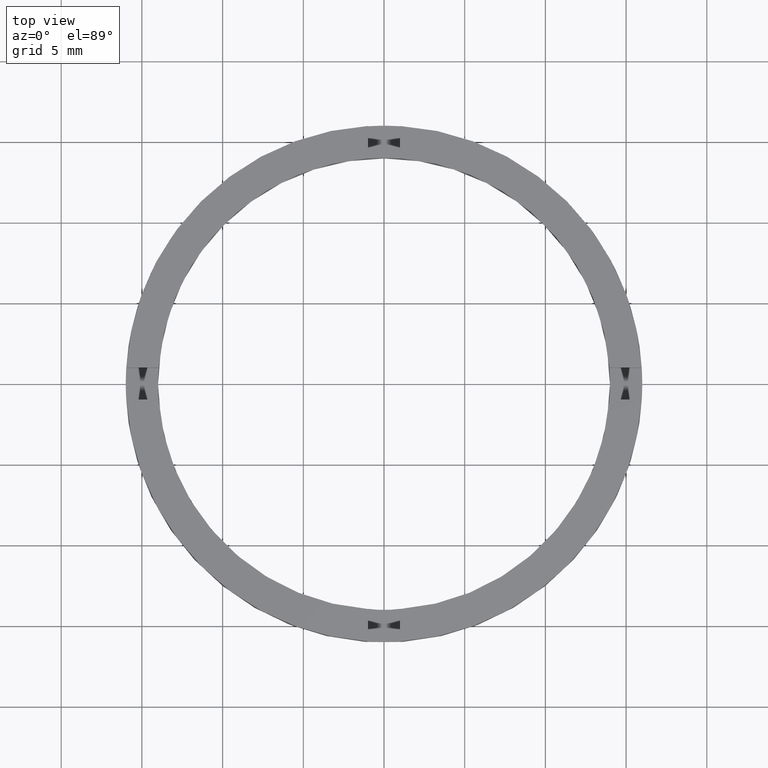
[diagram: clean part render]
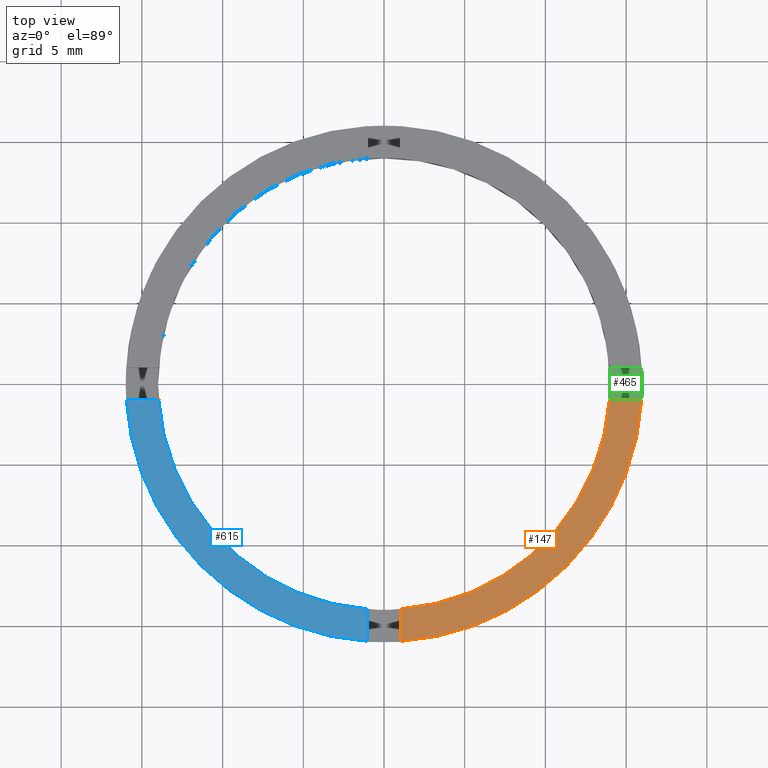
[diagram: same view with three faces highlighted in distinct colors, each labeled with its STEP entity id]
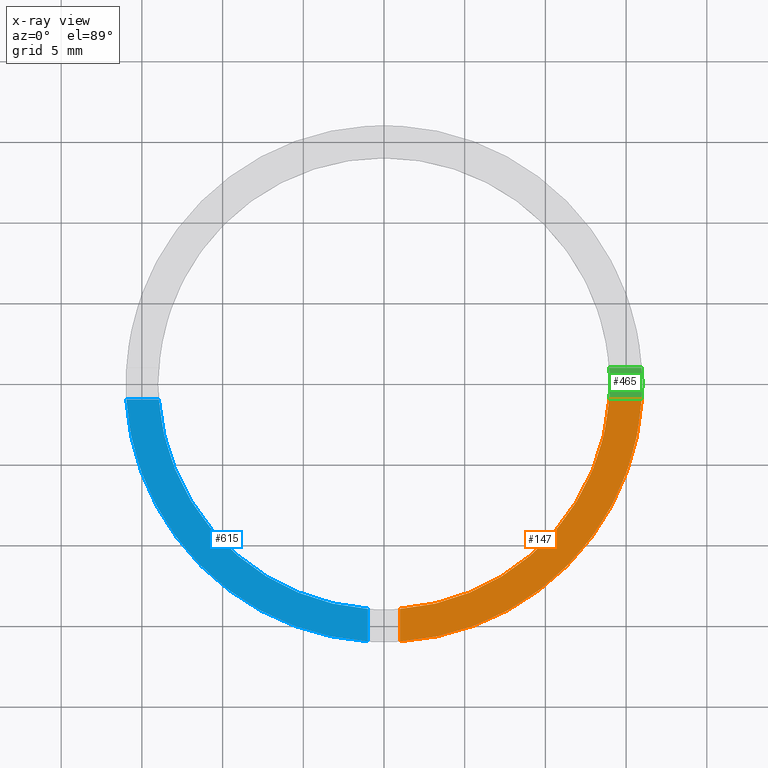
[diagram: x-ray of the same camera — body ghosted, the three highlighted faces saturated]
A machine part, top view with three faces highlighted in distinct colors.
The next image is the same camera in x-ray (body ghosted, the three faces saturated) — at least one of them is partly hidden behind the body in this view.
Their STEP definitions:

[orange] entity #147 — the highlighted planar face has unit normal (0, 0, 1).
#16 = CARTESIAN_POINT ( 'NONE',  ( 0.9999999999998373523, -15.96871942267132383, 2.500000000000000000 ) ) ;
#24 = DIRECTION ( 'NONE',  ( 1.000000000000000000, 0.000000000000000000, 0.000000000000000000 ) ) ;
#34 = AXIS2_PLACEMENT_3D ( 'NONE', #569, #611, #60 ) ;
#60 = DIRECTION ( 'NONE',  ( 1.000000000000000000, 0.000000000000000000, -0.000000000000000000 ) ) ;
#66 = EDGE_CURVE ( 'NONE', #484, #672, #451, .T. ) ;
#70 = DIRECTION ( 'NONE',  ( 0.000000000000000000, 0.000000000000000000, 1.000000000000000000 ) ) ;
#71 = DIRECTION ( 'NONE',  ( 0.000000000000000000, 0.000000000000000000, 1.000000000000000000 ) ) ;
#105 = VERTEX_POINT ( 'NONE', #732 ) ;
#147 = ADVANCED_FACE ( 'NONE', ( #631 ), #699, .T. ) ;
#161 = DIRECTION ( 'NONE',  ( 1.000000000000000000, 0.000000000000000000, 0.000000000000000000 ) ) ;
#174 = CIRCLE ( 'NONE', #321, 14.00000000000000000 ) ;
#177 = ORIENTED_EDGE ( 'NONE', *, *, #540, .F. ) ;
#272 = CARTESIAN_POINT ( 'NONE',  ( 0.000000000000000000, 0.000000000000000000, 2.500000000000000000 ) ) ;
#315 = CARTESIAN_POINT ( 'NONE',  ( 15.96871942267130429, -1.000000000000159206, 2.500000000000000000 ) ) ;
#316 = EDGE_CURVE ( 'NONE', #105, #419, #174, .T. ) ;
#321 = AXIS2_PLACEMENT_3D ( 'NONE', #620, #71, #24 ) ;
#325 = AXIS2_PLACEMENT_3D ( 'NONE', #272, #70, #161 ) ;
#401 = DIRECTION ( 'NONE',  ( 1.000000000000000000, 4.336808689942018352E-17, 0.000000000000000000 ) ) ;
#419 = VERTEX_POINT ( 'NONE', #574 ) ;
#451 = CIRCLE ( 'NONE', #325, 16.00000000000000000 ) ;
#457 = LINE ( 'NONE', #744, #730 ) ;
#475 = VECTOR ( 'NONE', #401, 1000.000000000000000 ) ;
#484 = VERTEX_POINT ( 'NONE', #16 ) ;
#504 = LINE ( 'NONE', #515, #475 ) ;
#515 = CARTESIAN_POINT ( 'NONE',  ( 5.999999999999994671, -1.000000000000159650, 2.500000000000000000 ) ) ;
#540 = EDGE_CURVE ( 'NONE', #484, #105, #457, .T. ) ;
#569 = CARTESIAN_POINT ( 'NONE',  ( 0.000000000000000000, 0.000000000000000000, 2.500000000000000000 ) ) ;
#574 = CARTESIAN_POINT ( 'NONE',  ( 13.96424004376893002, -1.000000000000159206, 2.500000000000000000 ) ) ;
#588 = EDGE_CURVE ( 'NONE', #419, #672, #504, .T. ) ;
#611 = DIRECTION ( 'NONE',  ( 0.000000000000000000, 0.000000000000000000, 1.000000000000000000 ) ) ;
#620 = CARTESIAN_POINT ( 'NONE',  ( 0.000000000000000000, 0.000000000000000000, 2.500000000000000000 ) ) ;
#631 = FACE_OUTER_BOUND ( 'NONE', #632, .T. ) ;
#632 = EDGE_LOOP ( 'NONE', ( #704, #655, #177, #659 ) ) ;
#655 = ORIENTED_EDGE ( 'NONE', *, *, #316, .F. ) ;
#659 = ORIENTED_EDGE ( 'NONE', *, *, #66, .T. ) ;
#662 = DIRECTION ( 'NONE',  ( -1.301042606982605321E-16, 1.000000000000000000, -0.000000000000000000 ) ) ;
#672 = VERTEX_POINT ( 'NONE', #315 ) ;
#699 = PLANE ( 'NONE',  #34 ) ;
#704 = ORIENTED_EDGE ( 'NONE', *, *, #588, .F. ) ;
#730 = VECTOR ( 'NONE', #662, 1000.000000000000000 ) ;
#732 = CARTESIAN_POINT ( 'NONE',  ( 0.9999999999998369082, -13.96424004376895311, 2.500000000000000000 ) ) ;
#744 = CARTESIAN_POINT ( 'NONE',  ( 0.9999999999998361311, -6.000000000000180300, 2.500000000000000000 ) ) ;

[blue] entity #615 — the highlighted planar face has unit normal (0, 0, 1).
#48 = DIRECTION ( 'NONE',  ( 0.000000000000000000, 0.000000000000000000, 1.000000000000000000 ) ) ;
#81 = CARTESIAN_POINT ( 'NONE',  ( -15.96871942267130962, -1.000000000000023315, 2.500000000000000000 ) ) ;
#83 = VERTEX_POINT ( 'NONE', #584 ) ;
#92 = VECTOR ( 'NONE', #260, 1000.000000000000000 ) ;
#100 = LINE ( 'NONE', #603, #92 ) ;
#104 = EDGE_LOOP ( 'NONE', ( #208, #163, #414, #661 ) ) ;
#119 = VERTEX_POINT ( 'NONE', #509 ) ;
#139 = VECTOR ( 'NONE', #772, 1000.000000000000000 ) ;
#163 = ORIENTED_EDGE ( 'NONE', *, *, #302, .F. ) ;
#208 = ORIENTED_EDGE ( 'NONE', *, *, #752, .F. ) ;
#256 = DIRECTION ( 'NONE',  ( 0.000000000000000000, 0.000000000000000000, 1.000000000000000000 ) ) ;
#257 = AXIS2_PLACEMENT_3D ( 'NONE', #334, #256, #436 ) ;
#260 = DIRECTION ( 'NONE',  ( 1.301042606982605321E-16, -1.000000000000000000, 0.000000000000000000 ) ) ;
#262 = EDGE_CURVE ( 'NONE', #681, #83, #430, .T. ) ;
#263 = CARTESIAN_POINT ( 'NONE',  ( 0.000000000000000000, 0.000000000000000000, 2.500000000000000000 ) ) ;
#300 = DIRECTION ( 'NONE',  ( 1.000000000000000000, 0.000000000000000000, 0.000000000000000000 ) ) ;
#302 = EDGE_CURVE ( 'NONE', #83, #356, #418, .T. ) ;
#310 = DIRECTION ( 'NONE',  ( 1.000000000000000000, 0.000000000000000000, -0.000000000000000000 ) ) ;
#334 = CARTESIAN_POINT ( 'NONE',  ( 0.000000000000000000, 0.000000000000000000, 2.500000000000000000 ) ) ;
#342 = DIRECTION ( 'NONE',  ( 0.000000000000000000, 0.000000000000000000, 1.000000000000000000 ) ) ;
#349 = CIRCLE ( 'NONE', #257, 16.00000000000000000 ) ;
#356 = VERTEX_POINT ( 'NONE', #780 ) ;
#359 = CARTESIAN_POINT ( 'NONE',  ( 0.000000000000000000, 0.000000000000000000, 2.500000000000000000 ) ) ;
#387 = AXIS2_PLACEMENT_3D ( 'NONE', #263, #342, #300 ) ;
#414 = ORIENTED_EDGE ( 'NONE', *, *, #262, .F. ) ;
#418 = CIRCLE ( 'NONE', #387, 14.00000000000000000 ) ;
#430 = LINE ( 'NONE', #605, #139 ) ;
#436 = DIRECTION ( 'NONE',  ( 1.000000000000000000, 0.000000000000000000, 0.000000000000000000 ) ) ;
#509 = CARTESIAN_POINT ( 'NONE',  ( -1.000000000000162759, -15.96871942267130073, 2.500000000000000000 ) ) ;
#533 = FACE_OUTER_BOUND ( 'NONE', #104, .T. ) ;
#584 = CARTESIAN_POINT ( 'NONE',  ( -13.96424004376894068, -1.000000000000022871, 2.500000000000000000 ) ) ;
#597 = PLANE ( 'NONE',  #715 ) ;
#603 = CARTESIAN_POINT ( 'NONE',  ( -1.000000000000163869, -6.000000000000180300, 2.500000000000000000 ) ) ;
#605 = CARTESIAN_POINT ( 'NONE',  ( -6.000000000000185629, -1.000000000000021538, 2.500000000000000000 ) ) ;
#615 = ADVANCED_FACE ( 'NONE', ( #533 ), #597, .T. ) ;
#661 = ORIENTED_EDGE ( 'NONE', *, *, #771, .T. ) ;
#681 = VERTEX_POINT ( 'NONE', #81 ) ;
#715 = AXIS2_PLACEMENT_3D ( 'NONE', #359, #48, #310 ) ;
#752 = EDGE_CURVE ( 'NONE', #356, #119, #100, .T. ) ;
#771 = EDGE_CURVE ( 'NONE', #681, #119, #349, .T. ) ;
#772 = DIRECTION ( 'NONE',  ( 1.000000000000000000, 1.734723475976807341E-16, -0.000000000000000000 ) ) ;
#780 = CARTESIAN_POINT ( 'NONE',  ( -1.000000000000162981, -13.96424004376893002, 2.500000000000000000 ) ) ;

[green] entity #465 — the highlighted planar face has unit normal (0, 0, 1).
#8 = CARTESIAN_POINT ( 'NONE',  ( 16.00000000000000000, 1.959434878635765131E-15, 1.500000000000000000 ) ) ;
#18 = CARTESIAN_POINT ( 'NONE',  ( 0.000000000000000000, 0.000000000000000000, 1.500000000000000000 ) ) ;
#23 = EDGE_CURVE ( 'NONE', #216, #408, #616, .T. ) ;
#44 = EDGE_CURVE ( 'NONE', #650, #453, #182, .T. ) ;
#46 = AXIS2_PLACEMENT_3D ( 'NONE', #18, #561, #55 ) ;
#47 = CARTESIAN_POINT ( 'NONE',  ( 5.999999999999994671, -1.000000000000159650, 1.500000000000000000 ) ) ;
#55 = DIRECTION ( 'NONE',  ( 1.000000000000000000, 0.000000000000000000, 0.000000000000000000 ) ) ;
#79 = CARTESIAN_POINT ( 'NONE',  ( 15.96871942267132027, 0.9999999999998409050, 1.500000000000000000 ) ) ;
#80 = VECTOR ( 'NONE', #190, 1000.000000000000000 ) ;
#101 = ORIENTED_EDGE ( 'NONE', *, *, #44, .T. ) ;
#102 = DIRECTION ( 'NONE',  ( 0.000000000000000000, 0.000000000000000000, 1.000000000000000000 ) ) ;
#131 = ORIENTED_EDGE ( 'NONE', *, *, #278, .F. ) ;
#132 = ORIENTED_EDGE ( 'NONE', *, *, #239, .T. ) ;
#133 = ORIENTED_EDGE ( 'NONE', *, *, #23, .T. ) ;
#143 = CIRCLE ( 'NONE', #242, 16.00000000000000000 ) ;
#158 = CIRCLE ( 'NONE', #234, 14.00000000000000000 ) ;
#182 = LINE ( 'NONE', #628, #443 ) ;
#183 = PLANE ( 'NONE',  #448 ) ;
#187 = AXIS2_PLACEMENT_3D ( 'NONE', #378, #236, #271 ) ;
#190 = DIRECTION ( 'NONE',  ( 1.000000000000000000, 4.336808689942018352E-17, 0.000000000000000000 ) ) ;
#213 = ORIENTED_EDGE ( 'NONE', *, *, #446, .F. ) ;
#216 = VERTEX_POINT ( 'NONE', #602 ) ;
#217 = FACE_OUTER_BOUND ( 'NONE', #671, .T. ) ;
#234 = AXIS2_PLACEMENT_3D ( 'NONE', #587, #543, #274 ) ;
#236 = DIRECTION ( 'NONE',  ( 0.000000000000000000, 0.000000000000000000, 1.000000000000000000 ) ) ;
#239 = EDGE_CURVE ( 'NONE', #408, #494, #143, .T. ) ;
#242 = AXIS2_PLACEMENT_3D ( 'NONE', #279, #102, #525 ) ;
#271 = DIRECTION ( 'NONE',  ( 1.000000000000000000, 0.000000000000000000, 0.000000000000000000 ) ) ;
#274 = DIRECTION ( 'NONE',  ( 1.000000000000000000, 0.000000000000000000, 0.000000000000000000 ) ) ;
#278 = EDGE_CURVE ( 'NONE', #394, #453, #158, .T. ) ;
#279 = CARTESIAN_POINT ( 'NONE',  ( 0.000000000000000000, 0.000000000000000000, 1.500000000000000000 ) ) ;
#378 = CARTESIAN_POINT ( 'NONE',  ( 0.000000000000000000, 0.000000000000000000, 1.500000000000000000 ) ) ;
#394 = VERTEX_POINT ( 'NONE', #703 ) ;
#408 = VERTEX_POINT ( 'NONE', #455 ) ;
#423 = DIRECTION ( 'NONE',  ( 1.000000000000000000, 0.000000000000000000, -0.000000000000000000 ) ) ;
#443 = VECTOR ( 'NONE', #498, 1000.000000000000000 ) ;
#446 = EDGE_CURVE ( 'NONE', #216, #394, #767, .T. ) ;
#448 = AXIS2_PLACEMENT_3D ( 'NONE', #520, #559, #423 ) ;
#452 = ORIENTED_EDGE ( 'NONE', *, *, #734, .T. ) ;
#453 = VERTEX_POINT ( 'NONE', #541 ) ;
#455 = CARTESIAN_POINT ( 'NONE',  ( 15.96871942267130429, -1.000000000000159206, 1.500000000000000000 ) ) ;
#465 = ADVANCED_FACE ( 'NONE', ( #217 ), #183, .T. ) ;
#494 = VERTEX_POINT ( 'NONE', #8 ) ;
#498 = DIRECTION ( 'NONE',  ( -1.000000000000000000, -4.336808689942018352E-17, -0.000000000000000000 ) ) ;
#520 = CARTESIAN_POINT ( 'NONE',  ( 0.000000000000000000, 0.000000000000000000, 1.500000000000000000 ) ) ;
#525 = DIRECTION ( 'NONE',  ( 1.000000000000000000, 0.000000000000000000, 0.000000000000000000 ) ) ;
#541 = CARTESIAN_POINT ( 'NONE',  ( 13.96424004376895311, 0.9999999999998409050, 1.500000000000000000 ) ) ;
#543 = DIRECTION ( 'NONE',  ( 0.000000000000000000, 0.000000000000000000, 1.000000000000000000 ) ) ;
#559 = DIRECTION ( 'NONE',  ( 0.000000000000000000, 0.000000000000000000, 1.000000000000000000 ) ) ;
#561 = DIRECTION ( 'NONE',  ( 0.000000000000000000, 0.000000000000000000, 1.000000000000000000 ) ) ;
#587 = CARTESIAN_POINT ( 'NONE',  ( 0.000000000000000000, 0.000000000000000000, 1.500000000000000000 ) ) ;
#602 = CARTESIAN_POINT ( 'NONE',  ( 13.96424004376893002, -1.000000000000159206, 1.500000000000000000 ) ) ;
#616 = LINE ( 'NONE', #47, #80 ) ;
#628 = CARTESIAN_POINT ( 'NONE',  ( 5.999999999999994671, 0.9999999999998404610, 1.500000000000000000 ) ) ;
#629 = CIRCLE ( 'NONE', #46, 16.00000000000000000 ) ;
#650 = VERTEX_POINT ( 'NONE', #79 ) ;
#671 = EDGE_LOOP ( 'NONE', ( #132, #452, #101, #131, #213, #133 ) ) ;
#703 = CARTESIAN_POINT ( 'NONE',  ( 14.00000000000000000, 1.714505518806294638E-15, 1.500000000000000000 ) ) ;
#734 = EDGE_CURVE ( 'NONE', #494, #650, #629, .T. ) ;
#767 = CIRCLE ( 'NONE', #187, 14.00000000000000000 ) ;